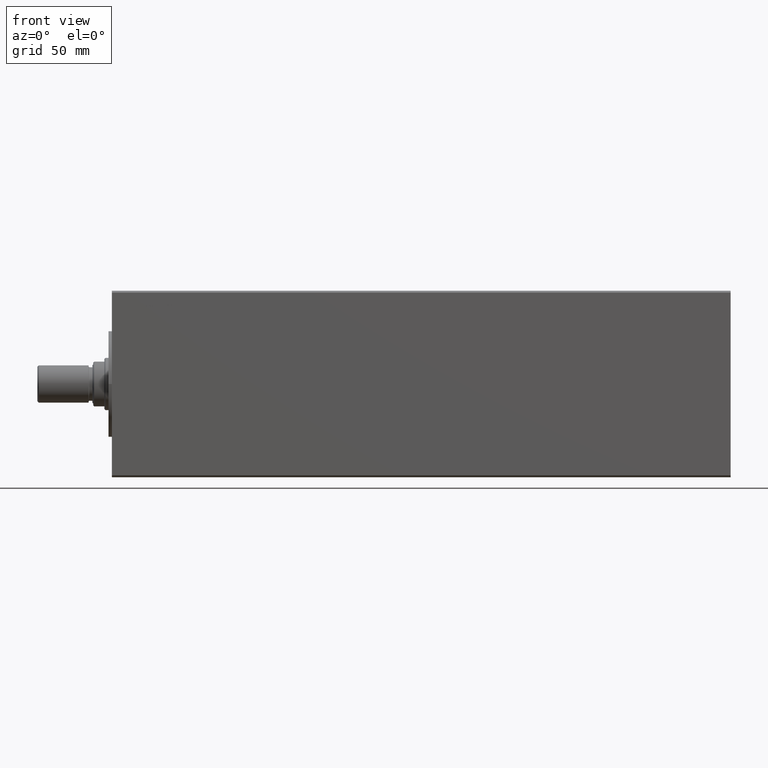
[diagram: clean part render]
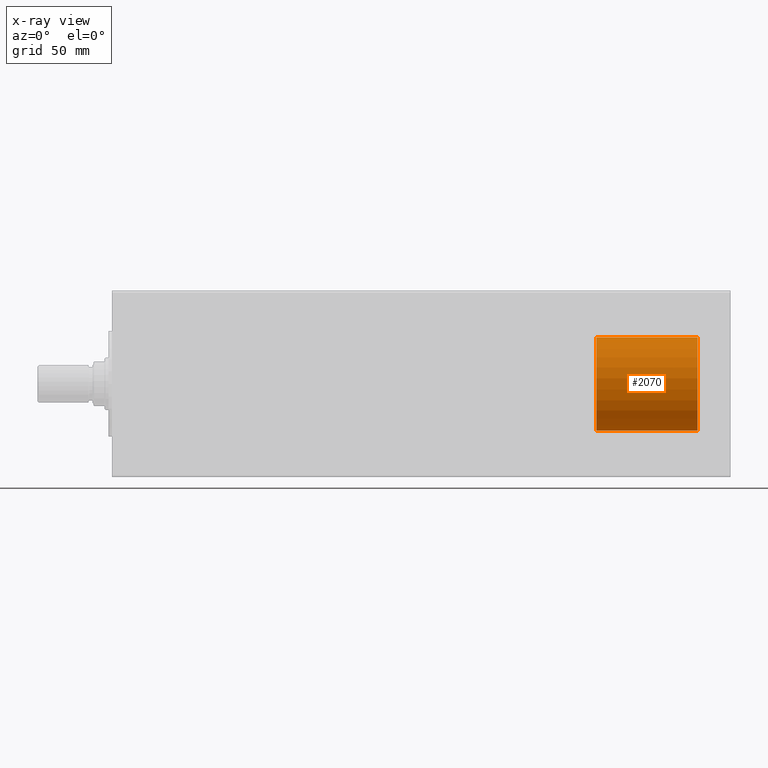
[diagram: x-ray — body ghosted, one internal face saturated and labeled with its STEP entity id]
A machine part, front view, then the same camera in x-ray: the body is ghosted and one INTERNAL B-rep face — a face not visible from any outside direction — is saturated and labeled: STEP entity #2070.
In plain terms, the highlighted cylindrical surface (partial cylindrical patch) has radius 25 mm, axis along (1, -0, -0).
Its self-contained STEP definition (entity closure, byte-faithful):
#1414 = ORIENTED_EDGE ( 'NONE', *, *, #16038, .F. ) ;
#2070 = ADVANCED_FACE ( 'NONE', ( #41594 ), #10787, .T. ) ;
#3024 = VERTEX_POINT ( 'NONE', #25342 ) ;
#3764 = EDGE_LOOP ( 'NONE', ( #1414, #16012, #20007, #24622 ) ) ;
#5699 = DIRECTION ( 'NONE',  ( 1.000000000000000000, 0.000000000000000000, 0.000000000000000000 ) ) ;
#7719 = CARTESIAN_POINT ( 'NONE',  ( 25.00000000000000000, 3.061616997868382254E-15, 54.20000000000000284 ) ) ;
#9096 = AXIS2_PLACEMENT_3D ( 'NONE', #42045, #24511, #38218 ) ;
#10787 = CYLINDRICAL_SURFACE ( 'NONE', #9096, 25.00000000000000000 ) ;
#12218 = DIRECTION ( 'NONE',  ( 0.000000000000000000, 0.000000000000000000, 1.000000000000000000 ) ) ;
#13539 = LINE ( 'NONE', #17777, #29758 ) ;
#14684 = DIRECTION ( 'NONE',  ( -0.000000000000000000, -0.000000000000000000, -1.000000000000000000 ) ) ;
#16012 = ORIENTED_EDGE ( 'NONE', *, *, #23653, .F. ) ;
#16038 = EDGE_CURVE ( 'NONE', #35364, #3024, #21666, .T. ) ;
#16442 = CARTESIAN_POINT ( 'NONE',  ( 0.000000000000000000, 0.000000000000000000, 54.20000000000000284 ) ) ;
#16570 = CARTESIAN_POINT ( 'NONE',  ( -25.00000000000000000, 0.000000000000000000, 0.000000000000000000 ) ) ;
#17293 = VERTEX_POINT ( 'NONE', #37128 ) ;
#17777 = CARTESIAN_POINT ( 'NONE',  ( -25.00000000000000000, 0.000000000000000000, 54.20000000000000284 ) ) ;
#20007 = ORIENTED_EDGE ( 'NONE', *, *, #21407, .T. ) ;
#21407 = EDGE_CURVE ( 'NONE', #17293, #44270, #13539, .T. ) ;
#21666 = LINE ( 'NONE', #7719, #35493 ) ;
#23653 = EDGE_CURVE ( 'NONE', #17293, #35364, #42951, .T. ) ;
#24078 = DIRECTION ( 'NONE',  ( 1.000000000000000000, 0.000000000000000000, 0.000000000000000000 ) ) ;
#24511 = DIRECTION ( 'NONE',  ( -0.000000000000000000, -0.000000000000000000, -1.000000000000000000 ) ) ;
#24622 = ORIENTED_EDGE ( 'NONE', *, *, #40653, .T. ) ;
#25006 = AXIS2_PLACEMENT_3D ( 'NONE', #16442, #30396, #24078 ) ;
#25342 = CARTESIAN_POINT ( 'NONE',  ( 25.00000000000000000, 3.061616997868382254E-15, 0.000000000000000000 ) ) ;
#25535 = CIRCLE ( 'NONE', #42779, 25.00000000000000000 ) ;
#29758 = VECTOR ( 'NONE', #31075, 1000.000000000000000 ) ;
#30396 = DIRECTION ( 'NONE',  ( 0.000000000000000000, 0.000000000000000000, 1.000000000000000000 ) ) ;
#31075 = DIRECTION ( 'NONE',  ( -0.000000000000000000, -0.000000000000000000, -1.000000000000000000 ) ) ;
#35364 = VERTEX_POINT ( 'NONE', #35458 ) ;
#35458 = CARTESIAN_POINT ( 'NONE',  ( 25.00000000000000000, 3.061616997868382254E-15, 54.20000000000000284 ) ) ;
#35493 = VECTOR ( 'NONE', #14684, 1000.000000000000000 ) ;
#37128 = CARTESIAN_POINT ( 'NONE',  ( -25.00000000000000000, 0.000000000000000000, 54.20000000000000284 ) ) ;
#38218 = DIRECTION ( 'NONE',  ( -1.000000000000000000, 0.000000000000000000, 0.000000000000000000 ) ) ;
#40653 = EDGE_CURVE ( 'NONE', #44270, #3024, #25535, .T. ) ;
#41594 = FACE_OUTER_BOUND ( 'NONE', #3764, .T. ) ;
#42045 = CARTESIAN_POINT ( 'NONE',  ( 0.000000000000000000, 0.000000000000000000, 54.20000000000000284 ) ) ;
#42195 = CARTESIAN_POINT ( 'NONE',  ( 0.000000000000000000, 0.000000000000000000, 0.000000000000000000 ) ) ;
#42779 = AXIS2_PLACEMENT_3D ( 'NONE', #42195, #12218, #5699 ) ;
#42951 = CIRCLE ( 'NONE', #25006, 25.00000000000000000 ) ;
#44270 = VERTEX_POINT ( 'NONE', #16570 ) ;